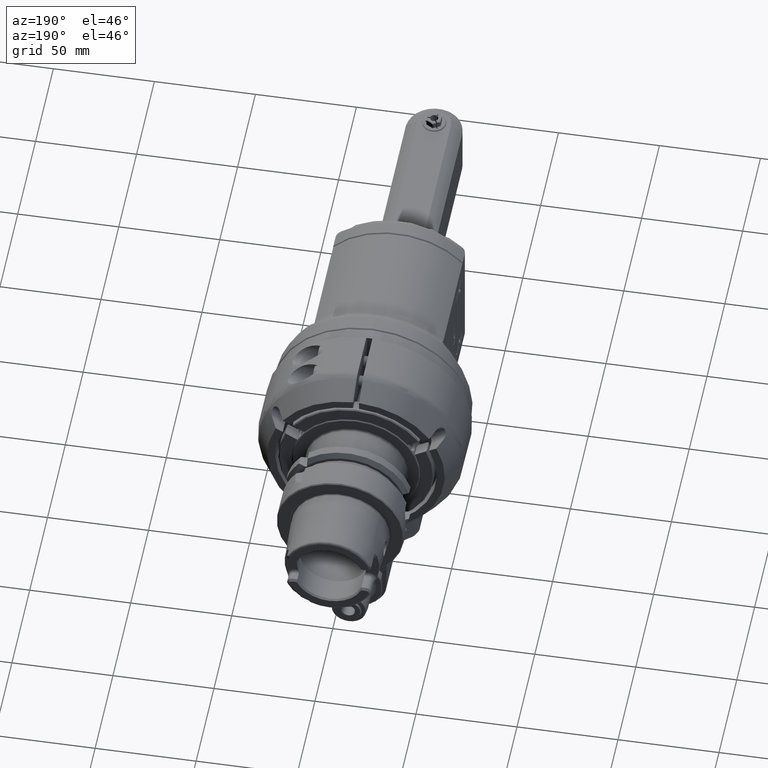
[diagram: clean part render]
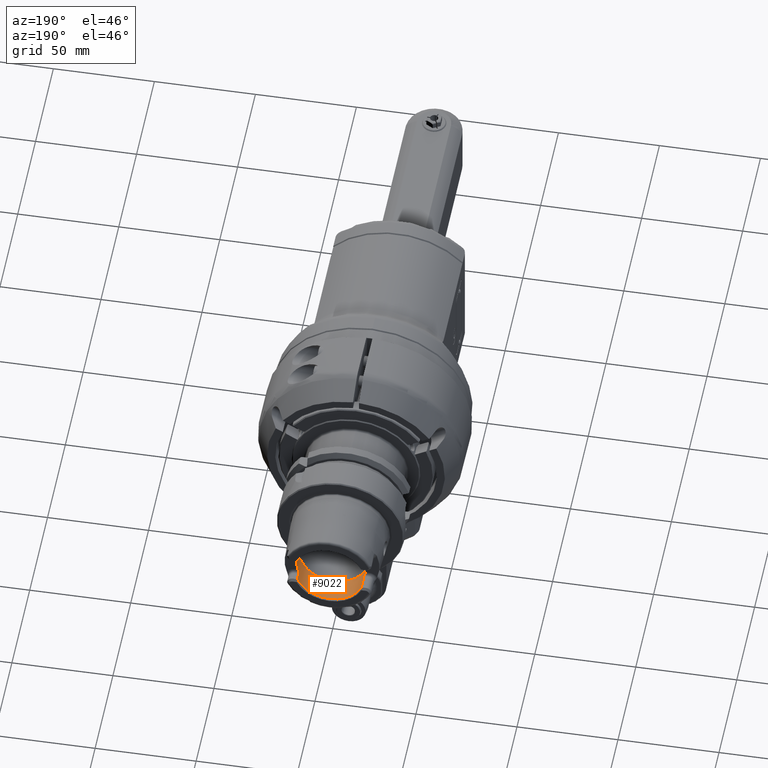
[diagram: same view with one face highlighted and labeled with its STEP entity id]
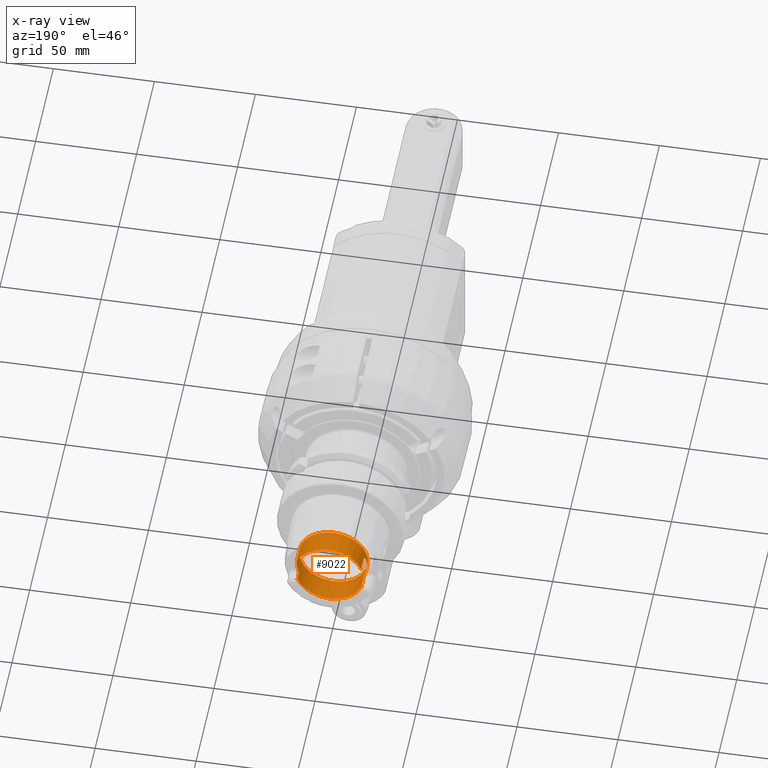
[diagram: x-ray of the same camera — body ghosted, the highlighted face saturated]
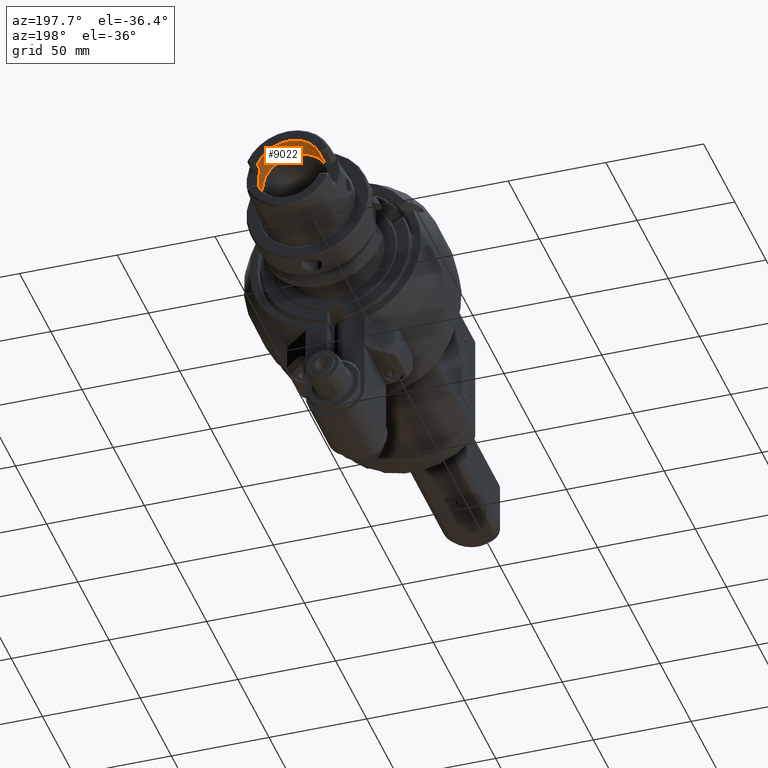
[diagram: same view with one face highlighted and labeled with its STEP entity id]
A machine part, auxiliary view. The second image highlights one B-rep face of the part: STEP entity #9022.
The next image is the same camera in x-ray: the body ghosted, the highlighted face saturated — about 0% of this face is hidden behind the body in this view.
A second angle (auxiliary view) of the same face is appended — the face is thin or edge-on in the first view.
In plain terms, the highlighted cylindrical surface (bore or boss wall) has radius 17 mm, axis along (0, 1, 0).
Its self-contained STEP definition (entity closure, byte-faithful):
#815=FACE_OUTER_BOUND('',#1374,.T.);
#1374=EDGE_LOOP('',(#6848,#6849,#6850,#6851,#6852,#6853,#6854,#6855,#6856,
#6857,#6858,#6859,#6860,#6861,#6862,#6863,#6864));
#1927=CIRCLE('',#9797,17.);
#1938=CIRCLE('',#9816,17.);
#1945=CIRCLE('',#9835,17.);
#1946=CIRCLE('',#9836,17.);
#1947=CIRCLE('',#9837,17.);
#1948=CIRCLE('',#9838,17.);
#1949=CIRCLE('',#9839,17.);
#2284=B_SPLINE_CURVE_WITH_KNOTS('',3,(#14953,#14954,#14955,#14956,#14957,
#14958,#14959,#14960,#14961,#14962),.UNSPECIFIED.,.F.,.F.,(4,2,2,2,4),(0.,
0.056497899521895,0.11299579904379,0.172665941565038,0.232336084086285),
 .UNSPECIFIED.);
#2285=B_SPLINE_CURVE_WITH_KNOTS('',3,(#14974,#14975,#14976,#14977,#14978,
#14979,#14980,#14981,#14982,#14983),.UNSPECIFIED.,.F.,.F.,(4,2,2,2,4),(-0.694241828658425,
-0.634571686137177,-0.57490154361593,-0.518403644094035,-0.46190574457214),
 .UNSPECIFIED.);
#2286=B_SPLINE_CURVE_WITH_KNOTS('',3,(#14985,#14986,#14987,#14988,#14989,
#14990,#14991,#14992,#14993,#14994),.UNSPECIFIED.,.F.,.F.,(4,2,2,2,4),(-0.46190574457214,
-0.405407845050245,-0.34890994552835,-0.289239803007102,-0.229569660485855),
 .UNSPECIFIED.);
#2287=B_SPLINE_CURVE_WITH_KNOTS('',3,(#15001,#15002,#15003,#15004,#15005,
#15006,#15007,#15008,#15009,#15010),.UNSPECIFIED.,.F.,.F.,(4,2,2,2,4),(-0.232336084086285,
-0.172665941565038,-0.11299579904379,-0.056497899521895,0.),
 .UNSPECIFIED.);
#2597=LINE('',#14950,#3245);
#2599=LINE('',#14969,#3247);
#2600=LINE('',#14973,#3248);
#2601=LINE('',#14996,#3249);
#2602=LINE('',#15000,#3250);
#3245=VECTOR('',#11323,7.5);
#3247=VECTOR('',#11333,17.);
#3248=VECTOR('',#11336,3.5);
#3249=VECTOR('',#11337,3.5);
#3250=VECTOR('',#11340,7.5);
#3993=VERTEX_POINT('',#14736);
#3994=VERTEX_POINT('',#14738);
#4010=VERTEX_POINT('',#14856);
#4011=VERTEX_POINT('',#14858);
#4024=VERTEX_POINT('',#14945);
#4025=VERTEX_POINT('',#14949);
#4026=VERTEX_POINT('',#14964);
#4027=VERTEX_POINT('',#14965);
#4028=VERTEX_POINT('',#14968);
#4029=VERTEX_POINT('',#14970);
#4030=VERTEX_POINT('',#14972);
#4031=VERTEX_POINT('',#14984);
#4032=VERTEX_POINT('',#14995);
#4033=VERTEX_POINT('',#14997);
#4034=VERTEX_POINT('',#14999);
#5026=EDGE_CURVE('',#3993,#3994,#1927,.T.);
#5050=EDGE_CURVE('',#4010,#4011,#1938,.T.);
#5071=EDGE_CURVE('',#4025,#4024,#2597,.T.);
#5073=EDGE_CURVE('',#4025,#3993,#2284,.T.);
#5074=EDGE_CURVE('',#4026,#4027,#1945,.T.);
#5075=EDGE_CURVE('',#4027,#4026,#1946,.T.);
#5076=EDGE_CURVE('',#4027,#4028,#2599,.T.);
#5077=EDGE_CURVE('',#4029,#4028,#1947,.T.);
#5078=EDGE_CURVE('',#4029,#4030,#2600,.T.);
#5079=EDGE_CURVE('',#4011,#4030,#2285,.T.);
#5080=EDGE_CURVE('',#4031,#4010,#2286,.T.);
#5081=EDGE_CURVE('',#4031,#4032,#2601,.T.);
#5082=EDGE_CURVE('',#4033,#4032,#1948,.T.);
#5083=EDGE_CURVE('',#4033,#4034,#2602,.T.);
#5084=EDGE_CURVE('',#3994,#4034,#2287,.T.);
#5085=EDGE_CURVE('',#4028,#4024,#1949,.T.);
#6848=ORIENTED_EDGE('',*,*,#5074,.F.);
#6849=ORIENTED_EDGE('',*,*,#5075,.F.);
#6850=ORIENTED_EDGE('',*,*,#5076,.T.);
#6851=ORIENTED_EDGE('',*,*,#5077,.F.);
#6852=ORIENTED_EDGE('',*,*,#5078,.T.);
#6853=ORIENTED_EDGE('',*,*,#5079,.F.);
#6854=ORIENTED_EDGE('',*,*,#5050,.F.);
#6855=ORIENTED_EDGE('',*,*,#5080,.F.);
#6856=ORIENTED_EDGE('',*,*,#5081,.T.);
#6857=ORIENTED_EDGE('',*,*,#5082,.F.);
#6858=ORIENTED_EDGE('',*,*,#5083,.T.);
#6859=ORIENTED_EDGE('',*,*,#5084,.F.);
#6860=ORIENTED_EDGE('',*,*,#5026,.F.);
#6861=ORIENTED_EDGE('',*,*,#5073,.F.);
#6862=ORIENTED_EDGE('',*,*,#5071,.T.);
#6863=ORIENTED_EDGE('',*,*,#5085,.F.);
#6864=ORIENTED_EDGE('',*,*,#5076,.F.);
#8760=CYLINDRICAL_SURFACE('',#9834,17.);
#9022=ADVANCED_FACE('',(#815),#8760,.F.);
#9797=AXIS2_PLACEMENT_3D('',#14739,#11240,#11241);
#9816=AXIS2_PLACEMENT_3D('',#14859,#11283,#11284);
#9834=AXIS2_PLACEMENT_3D('',#14963,#11327,#11328);
#9835=AXIS2_PLACEMENT_3D('',#14966,#11329,#11330);
#9836=AXIS2_PLACEMENT_3D('',#14967,#11331,#11332);
#9837=AXIS2_PLACEMENT_3D('',#14971,#11334,#11335);
#9838=AXIS2_PLACEMENT_3D('',#14998,#11338,#11339);
#9839=AXIS2_PLACEMENT_3D('',#15011,#11341,#11342);
#11240=DIRECTION('center_axis',(0.,0.,-1.));
#11241=DIRECTION('ref_axis',(0.280588235294097,-0.959828235787291,0.));
#11283=DIRECTION('center_axis',(0.,0.,-1.));
#11284=DIRECTION('ref_axis',(-0.280588235294097,0.959828235787291,0.));
#11323=DIRECTION('',(0.,0.,1.));
#11327=DIRECTION('center_axis',(0.,0.,1.));
#11328=DIRECTION('ref_axis',(-1.,0.,0.));
#11329=DIRECTION('center_axis',(0.,0.,1.));
#11330=DIRECTION('ref_axis',(-0.255555555555586,0.966794372151946,0.));
#11331=DIRECTION('center_axis',(0.,0.,1.));
#11332=DIRECTION('ref_axis',(-0.255555555555586,0.966794372151946,0.));
#11333=DIRECTION('',(0.,0.,1.));
#11334=DIRECTION('center_axis',(0.,0.,-1.));
#11335=DIRECTION('ref_axis',(0.368823529411804,0.929499437413611,0.));
#11336=DIRECTION('',(0.,0.,-1.));
#11337=DIRECTION('',(0.,-1.015061051086E-14,1.));
#11338=DIRECTION('center_axis',(0.,0.,-1.));
#11339=DIRECTION('ref_axis',(-0.368823529411804,-0.929499437413611,0.));
#11340=DIRECTION('',(0.,0.,-1.));
#11341=DIRECTION('center_axis',(0.,0.,-1.));
#11342=DIRECTION('ref_axis',(0.368823529411804,0.929499437413611,0.));
#14736=CARTESIAN_POINT('',(4.77,-16.31708000838,72.995));
#14738=CARTESIAN_POINT('',(-4.77,-16.31708000838,72.995));
#14739=CARTESIAN_POINT('Origin',(0.,0.,72.995));
#14856=CARTESIAN_POINT('',(-4.77,16.31708000838,76.995));
#14858=CARTESIAN_POINT('',(4.77,16.31708000838,76.995));
#14859=CARTESIAN_POINT('Origin',(0.,0.,76.995));
#14945=CARTESIAN_POINT('',(6.27,-15.80149043603,81.995));
#14949=CARTESIAN_POINT('',(6.27,-15.80149043603,74.495));
#14950=CARTESIAN_POINT('',(6.27,-15.80149043603,74.495));
#14953=CARTESIAN_POINT('Ctrl Pts',(6.27,-15.8014904360317,74.495));
#14954=CARTESIAN_POINT('Ctrl Pts',(6.27,-15.8014904360317,74.3066736682603));
#14955=CARTESIAN_POINT('Ctrl Pts',(6.23232125085234,-15.8165946761251,74.1069229195206));
#14956=CARTESIAN_POINT('Ctrl Pts',(6.082078486584,-15.8749745356799,73.7417155703026));
#14957=CARTESIAN_POINT('Ctrl Pts',(5.96960590306612,-15.9179857910505,73.5761791540138));
#14958=CARTESIAN_POINT('Ctrl Pts',(5.70721093092864,-16.01400454532,73.3080861154278));
#14959=CARTESIAN_POINT('Ctrl Pts',(5.53690543536203,-16.0742436586733,73.1900909803916));
#14960=CARTESIAN_POINT('Ctrl Pts',(5.16378617408596,-16.1979610859593,73.0335404635846));
#14961=CARTESIAN_POINT('Ctrl Pts',(4.96091029208457,-16.2612708750845,72.995));
#14962=CARTESIAN_POINT('Ctrl Pts',(4.77,-16.3170800083839,72.995));
#14963=CARTESIAN_POINT('Origin',(0.,0.,61.995));
#14964=CARTESIAN_POINT('',(-4.34444444444562,16.4355043265856,69.9910254037845));
#14965=CARTESIAN_POINT('',(17.,2.0818995585505E-15,69.99102540378));
#14966=CARTESIAN_POINT('Origin',(0.,0.,69.99102540378));
#14967=CARTESIAN_POINT('Origin',(0.,0.,69.99102540378));
#14968=CARTESIAN_POINT('',(17.,2.0818995585505E-15,81.995));
#14969=CARTESIAN_POINT('',(17.,2.0818995585505E-15,61.995));
#14970=CARTESIAN_POINT('',(6.27,15.80149043603,81.995));
#14971=CARTESIAN_POINT('Origin',(0.,0.,81.995));
#14972=CARTESIAN_POINT('',(6.27,15.80149043603,78.495));
#14973=CARTESIAN_POINT('',(6.27,15.80149043603,81.995));
#14974=CARTESIAN_POINT('Ctrl Pts',(4.77,16.3170800083839,76.995));
#14975=CARTESIAN_POINT('Ctrl Pts',(4.96091029208457,16.2612708750845,76.9950000000001));
#14976=CARTESIAN_POINT('Ctrl Pts',(5.16378617408597,16.1979610859593,77.0335404635846));
#14977=CARTESIAN_POINT('Ctrl Pts',(5.53690543536204,16.0742436586733,77.1900909803916));
#14978=CARTESIAN_POINT('Ctrl Pts',(5.70721093092864,16.01400454532,77.3080861154278));
#14979=CARTESIAN_POINT('Ctrl Pts',(5.96960590306612,15.9179857910505,77.5761791540138));
#14980=CARTESIAN_POINT('Ctrl Pts',(6.082078486584,15.8749745356799,77.7417155703026));
#14981=CARTESIAN_POINT('Ctrl Pts',(6.23232125085235,15.8165946761251,78.1069229195206));
#14982=CARTESIAN_POINT('Ctrl Pts',(6.27,15.8014904360317,78.3066736682603));
#14983=CARTESIAN_POINT('Ctrl Pts',(6.27,15.8014904360317,78.495));
#14984=CARTESIAN_POINT('',(-6.27,15.80149043603,78.495));
#14985=CARTESIAN_POINT('Ctrl Pts',(-6.27,15.8014904360317,78.495));
#14986=CARTESIAN_POINT('Ctrl Pts',(-6.27,15.8014904360317,78.3066736682603));
#14987=CARTESIAN_POINT('Ctrl Pts',(-6.23232125085234,15.8165946761251,78.1069229195206));
#14988=CARTESIAN_POINT('Ctrl Pts',(-6.082078486584,15.8749745356799,77.7417155703026));
#14989=CARTESIAN_POINT('Ctrl Pts',(-5.96960590306612,15.9179857910505,77.5761791540138));
#14990=CARTESIAN_POINT('Ctrl Pts',(-5.70721093092864,16.01400454532,77.3080861154278));
#14991=CARTESIAN_POINT('Ctrl Pts',(-5.53690543536203,16.0742436586733,77.1900909803916));
#14992=CARTESIAN_POINT('Ctrl Pts',(-5.16378617408596,16.1979610859593,77.0335404635846));
#14993=CARTESIAN_POINT('Ctrl Pts',(-4.96091029208457,16.2612708750845,76.995));
#14994=CARTESIAN_POINT('Ctrl Pts',(-4.77,16.3170800083839,76.995));
#14995=CARTESIAN_POINT('',(-6.27,15.80149043603,81.995));
#14996=CARTESIAN_POINT('',(-6.27,15.80149043603,78.495));
#14997=CARTESIAN_POINT('',(-6.27,-15.80149043603,81.995));
#14998=CARTESIAN_POINT('Origin',(0.,0.,81.995));
#14999=CARTESIAN_POINT('',(-6.27,-15.80149043603,74.495));
#15000=CARTESIAN_POINT('',(-6.27,-15.80149043603,81.995));
#15001=CARTESIAN_POINT('Ctrl Pts',(-4.77,-16.3170800083839,72.995));
#15002=CARTESIAN_POINT('Ctrl Pts',(-4.96091029208457,-16.2612708750845,
72.9950000000001));
#15003=CARTESIAN_POINT('Ctrl Pts',(-5.16378617408596,-16.1979610859593,
73.0335404635846));
#15004=CARTESIAN_POINT('Ctrl Pts',(-5.53690543536203,-16.0742436586733,
73.1900909803916));
#15005=CARTESIAN_POINT('Ctrl Pts',(-5.70721093092864,-16.01400454532,73.3080861154278));
#15006=CARTESIAN_POINT('Ctrl Pts',(-5.96960590306612,-15.9179857910505,
73.5761791540138));
#15007=CARTESIAN_POINT('Ctrl Pts',(-6.082078486584,-15.8749745356799,73.7417155703026));
#15008=CARTESIAN_POINT('Ctrl Pts',(-6.23232125085234,-15.8165946761251,
74.1069229195206));
#15009=CARTESIAN_POINT('Ctrl Pts',(-6.27,-15.8014904360317,74.3066736682603));
#15010=CARTESIAN_POINT('Ctrl Pts',(-6.27,-15.8014904360317,74.495));
#15011=CARTESIAN_POINT('Origin',(0.,0.,81.995));